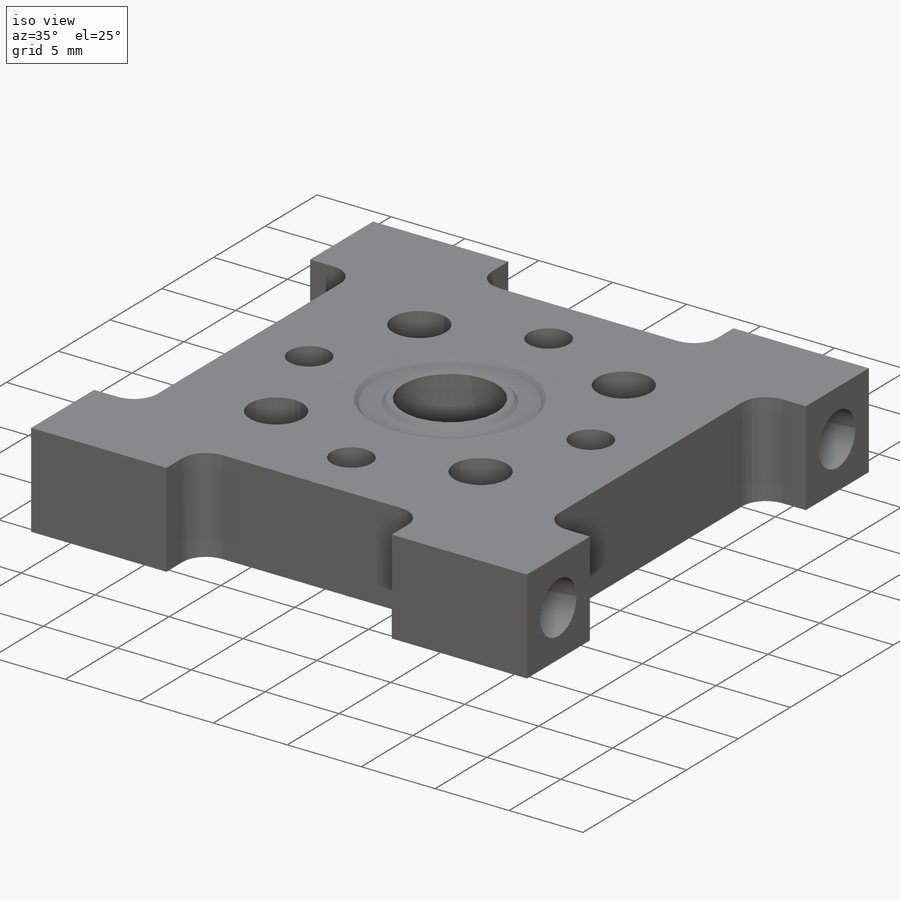
[diagram: iso view]
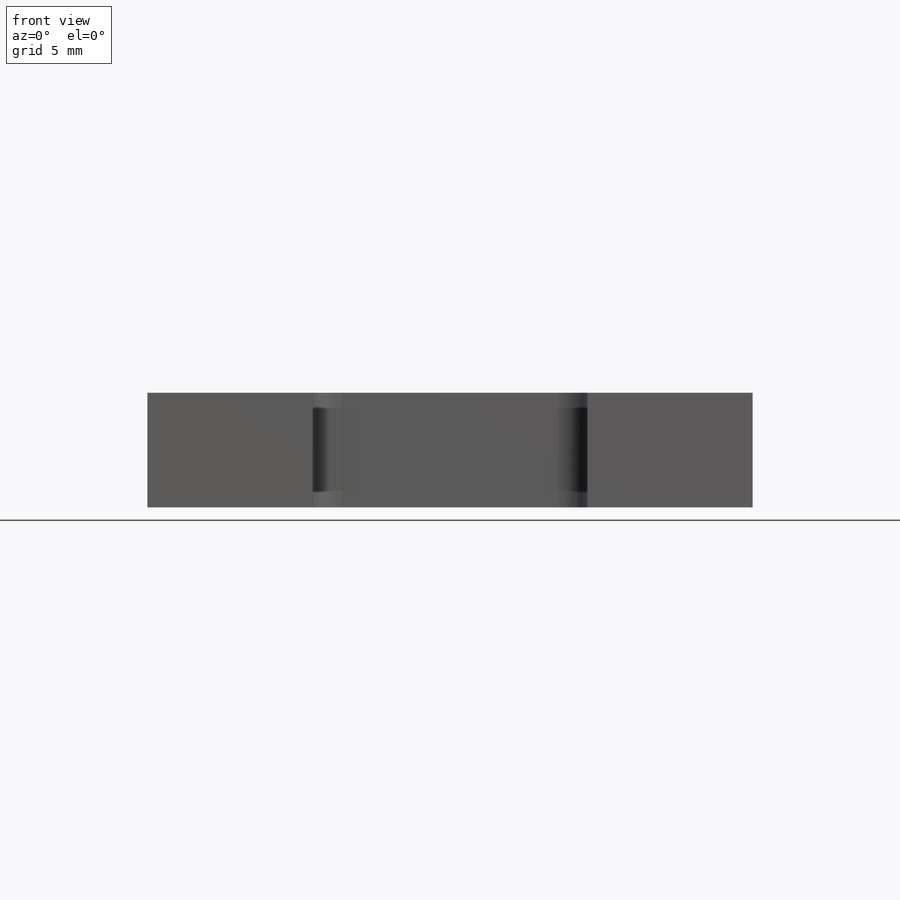
[diagram: front view]
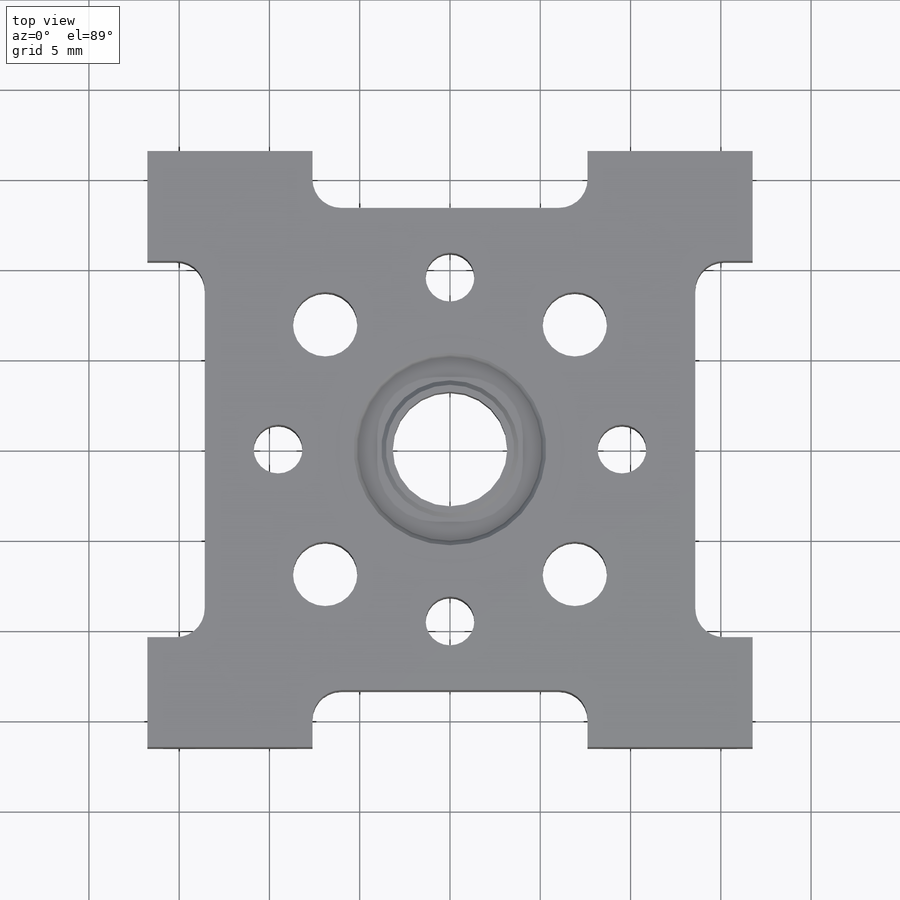
[diagram: top view]
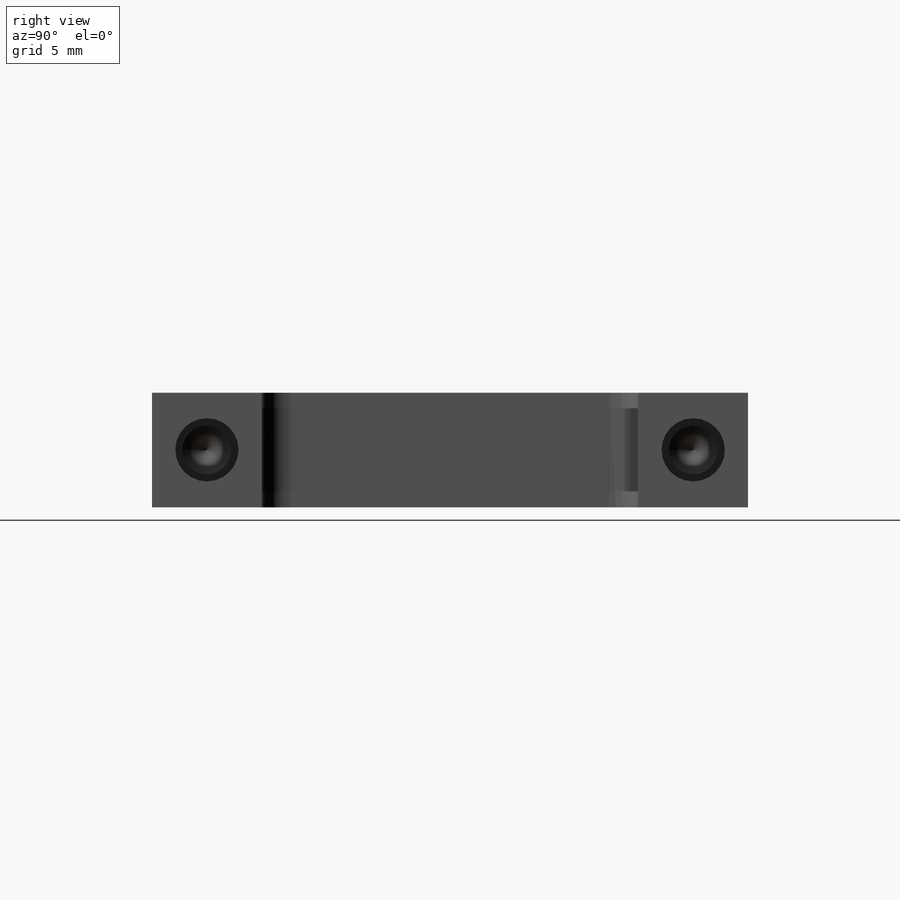
[diagram: right view]
SOLIDWORKS PART (.sldprt)
format: sldprt  version: not decoded by parser v0  size: 492,032 bytes
history: native  units: mm
features: sketch x11, extrude x4, thread x4, hole x3, plane x2, chamfer x2, material x1, cut_extrude x1, mirror x1 (+13 scaffold rows collapsed)
feature tree (42):
  scaffold x13  (default folders/planes/origin — collapsed)
  material  "6061 Alloy"
  sketch  "Sketch1"  dims[c1.D6=1.5875mm c1.D10=1.5875mm c1.D11=10.795mm c1.D1=33.02mm c1.D2=33.528mm c2.D1=33.02mm c2.D2=33.528mm c2.D3=15.24mm c2.D4=7.62mm c2.D5=3.1496mm c2.D7=20.8534mm c2.D8=10.4267mm c2.D9=3.175mm]
  extrude  "Boss-Extrude1"  Depth=6.35mm
  sketch  "Sketch2"  dims[D1=12.7mm]
  cut_extrude  "Cut-Extrude1"  Depth=4.7625mm
  plane  "Plane1"
  sketch  "Sketch3"  dims[D2=10.16mm D1=1.27mm]
  extrude  "Boss-Extrude2"  Depth=4.75996mm
  chamfer  "Chamfer1"  Distance=0.254mm Angle=45deg
  sketch  "Sketch4"  dims[D1=6.35mm D2=0.635mm]
  extrude  "Boss-Extrude3"  Depth=4.75996mm
  chamfer  "Chamfer2"  Distance=0.254mm Angle=45deg
  plane  "Plane2"
  sketch  "Sketch5"  dims[D1=10.16mm D2=7.62mm]
  extrude  "Boss-Extrude4"  Depth=4.2545mm
  hole  "#6-32 Tapped Hole1"  Diameter=2.7051mm Depth=7.9502mm
  sketch  "Sketch9"  dims[D1=19.05mm D2=19.05mm D3=3.175mm]
  sketch  "Sketch8"  dims[hole-wizard template sketch: 29 standard entries collapsed; hole parameters kept: c8.Tap Drill Depth=7.9502mm c8.Thread Major Dia.=3.5052mm c8.Thread Depth=7.0104mm c8.D5=~14.816244mm c8.Drill Angle=118.0deg]
  mirror  "Mirror1"
  hole  "#6-32 Tapped Hole2"  Diameter=2.7051mm Depth=6.35mm
  sketch  "Sketch11"  dims[D1=9.525mm D2=4.0]
  sketch  "Sketch10"  dims[hole-wizard template sketch: 60 standard entries collapsed; hole parameters kept: c18.Thru Tap Drill Depth=6.35mm]
  thread  "Hole Thread1"  Diameter=3.5052mm  [1 undecoded]
  thread  "Hole Thread2"  Diameter=3.5052mm  [1 undecoded]
  thread  "Hole Thread3"  Diameter=3.5052mm  [1 undecoded]
  thread  "Hole Thread4"  Diameter=3.5052mm  [1 undecoded]
  hole  "9/64 (0.14063) Diameter Hole1"  Diameter=3.572002mm Depth=6.35mm
  sketch  "Sketch13"  dims[c1.D1=45.0deg c2.D1=9.779mm c2.D2=9.779mm c3.D2=45.0deg c3.D3=4.0]
  sketch  "Sketch12"  dims[hole-wizard template sketch: 46 standard entries collapsed; hole parameters kept: c15.Hole Dia.=~3.572002mm c15.Hole Depth=6.35mm c15.D3=~14.816244mm c15.Drill Angle=118.0deg]
decode coverage: 25 of 26 modeling features carry decoded parameters
note: ~ marks probable driven/reference dimensions
note: 4 parameter values undecoded
note: suppression state not decoded; provenance and decode notes live in map.json
